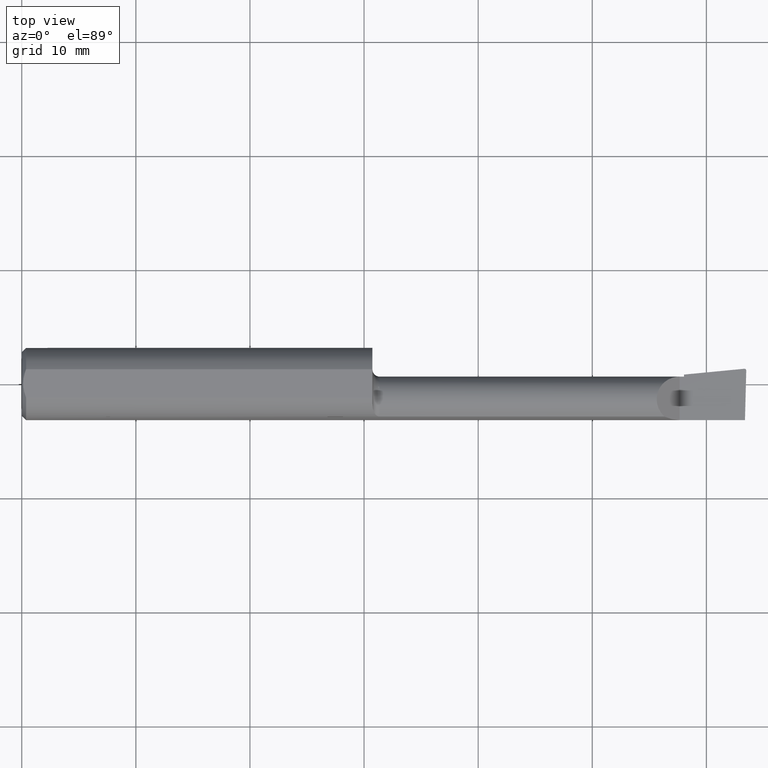
[diagram: clean part render]
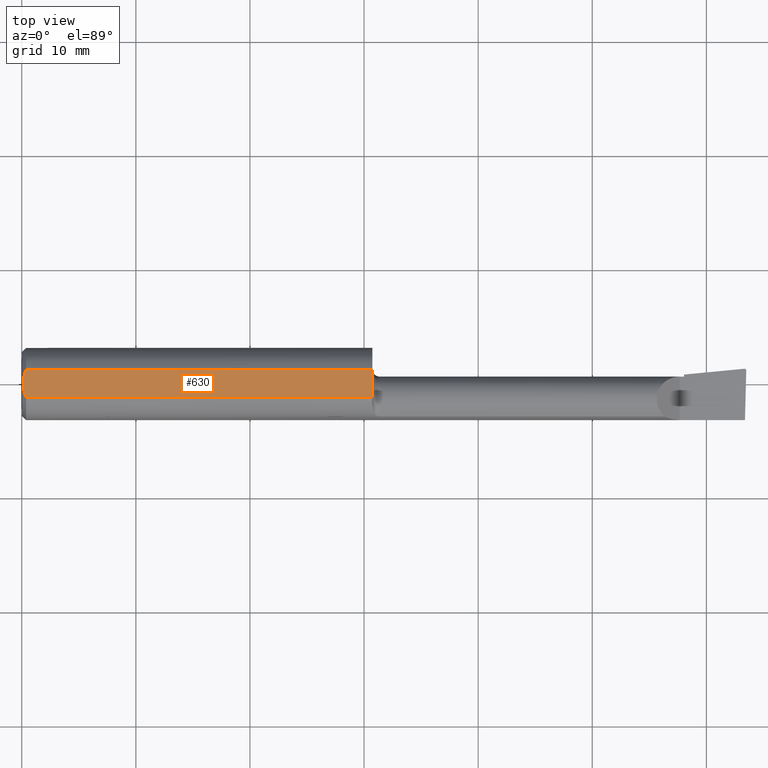
[diagram: same view with one face highlighted and labeled with its STEP entity id]
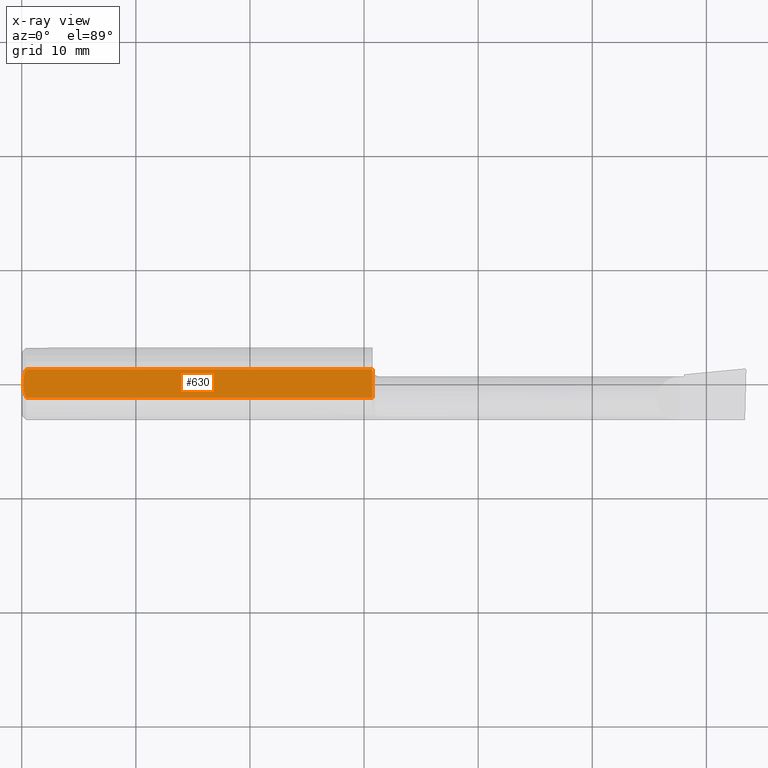
[diagram: x-ray of the same camera — body ghosted, the highlighted face saturated]
A machine part, top view. The second image highlights one B-rep face of the part: STEP entity #630.
The next image is the same camera in x-ray: the body ghosted, the highlighted face saturated — about 0% of this face is hidden behind the body in this view.
In plain terms, the highlighted planar face has unit normal (0, -0, -1).
Its self-contained STEP definition (entity closure, byte-faithful):
#17 = CARTESIAN_POINT ( 'NONE',  ( 2.500000000000000000, 0.1748500000000000054, 0.1148500000000000076 ) ) ;
#19 = CARTESIAN_POINT ( 'NONE',  ( 0.005000000000000237761, 1.454187638523587873E-17, 0.1148500000000000076 ) ) ;
#21 = CARTESIAN_POINT ( 'NONE',  ( 0.01499999999999999424, 0.04895916665957457392, 0.1148500000000000076 ) ) ;
#35 = CARTESIAN_POINT ( 'NONE',  ( 0.009410502401328815075, 0.03310661131402416191, 0.1148500000000000076 ) ) ;
#66 = DIRECTION ( 'NONE',  ( -1.000000000000000000, -0.0000000000000000000, -0.0000000000000000000 ) ) ;
#80 = B_SPLINE_CURVE_WITH_KNOTS ( 'NONE', 3,
 ( #665, #380, #325, #549, #288, #636 ),
 .UNSPECIFIED., .F., .F.,
 ( 4, 2, 4 ),
 ( 0.001029394377391489035, 0.001663875367397493060, 0.002298356357403497086 ),
 .UNSPECIFIED. ) ;
#99 = ORIENTED_EDGE ( 'NONE', *, *, #323, .F. ) ;
#120 = CARTESIAN_POINT ( 'NONE',  ( 1.210000000000000187, 0.1748500000000000054, 0.1148500000000000076 ) ) ;
#133 = B_SPLINE_CURVE_WITH_KNOTS ( 'NONE', 3,
 ( #19, #456, #374, #35, #424, #267 ),
 .UNSPECIFIED., .F., .F.,
 ( 4, 2, 4 ),
 ( 0.002298356357403497086, 0.002932796277434359007, 0.003567236197465221362 ),
 .UNSPECIFIED. ) ;
#134 = LINE ( 'NONE', #333, #540 ) ;
#150 = VECTOR ( 'NONE', #66, 39.37007874015748143 ) ;
#153 = CARTESIAN_POINT ( 'NONE',  ( 1.210000000000000187, 0.04895916665957456004, 0.1148500000000000076 ) ) ;
#174 = VERTEX_POINT ( 'NONE', #21 ) ;
#218 = EDGE_CURVE ( 'NONE', #293, #174, #133, .T. ) ;
#224 = CARTESIAN_POINT ( 'NONE',  ( 1.210000000000000187, -0.04895916665957457392, 0.1148500000000000215 ) ) ;
#240 = VERTEX_POINT ( 'NONE', #224 ) ;
#260 = FACE_OUTER_BOUND ( 'NONE', #379, .T. ) ;
#267 = CARTESIAN_POINT ( 'NONE',  ( 0.01499999999999999424, 0.04895916665957457392, 0.1148500000000000076 ) ) ;
#284 = EDGE_CURVE ( 'NONE', #569, #293, #80, .T. ) ;
#288 = CARTESIAN_POINT ( 'NONE',  ( 0.005000000000000194393, -0.008410771716546815852, 0.1148500000000000076 ) ) ;
#293 = VERTEX_POINT ( 'NONE', #637 ) ;
#318 = EDGE_CURVE ( 'NONE', #538, #240, #411, .T. ) ;
#323 = EDGE_CURVE ( 'NONE', #240, #569, #422, .T. ) ;
#325 = CARTESIAN_POINT ( 'NONE',  ( 0.009415874254822530556, -0.03313958207962815899, 0.1148500000000000354 ) ) ;
#333 = CARTESIAN_POINT ( 'NONE',  ( 0.0000000000000000000, 0.04895916665957457392, 0.1148500000000000076 ) ) ;
#364 = ORIENTED_EDGE ( 'NONE', *, *, #318, .F. ) ;
#374 = CARTESIAN_POINT ( 'NONE',  ( 0.005947935873631425563, 0.01679708999422678192, 0.1148499999999999938 ) ) ;
#379 = EDGE_LOOP ( 'NONE', ( #364, #571, #398, #385, #99 ) ) ;
#380 = CARTESIAN_POINT ( 'NONE',  ( 0.01195732443765553168, -0.04120008761723500251, 0.1148500000000000215 ) ) ;
#385 = ORIENTED_EDGE ( 'NONE', *, *, #284, .F. ) ;
#398 = ORIENTED_EDGE ( 'NONE', *, *, #218, .F. ) ;
#401 = EDGE_CURVE ( 'NONE', #174, #538, #134, .T. ) ;
#411 = LINE ( 'NONE', #120, #541 ) ;
#422 = LINE ( 'NONE', #645, #150 ) ;
#424 = CARTESIAN_POINT ( 'NONE',  ( 0.01193974418109659645, 0.04115525648180389656, 0.1148500000000000076 ) ) ;
#445 = DIRECTION ( 'NONE',  ( 0.0000000000000000000, 1.000000000000000000, -4.882484975808304553E-17 ) ) ;
#456 = CARTESIAN_POINT ( 'NONE',  ( 0.005000000000000195260, 0.008410227287019747533, 0.1148500000000000215 ) ) ;
#487 = PLANE ( 'NONE',  #573 ) ;
#489 = DIRECTION ( 'NONE',  ( 1.000000000000000000, 0.0000000000000000000, 0.0000000000000000000 ) ) ;
#538 = VERTEX_POINT ( 'NONE', #153 ) ;
#540 = VECTOR ( 'NONE', #489, 39.37007874015748143 ) ;
#541 = VECTOR ( 'NONE', #552, 39.37007874015748143 ) ;
#549 = CARTESIAN_POINT ( 'NONE',  ( 0.005932194444709924276, -0.01671525318617307979, 0.1148500000000000215 ) ) ;
#552 = DIRECTION ( 'NONE',  ( -3.414809992080329023E-18, -1.000000000000000000, 4.882484975808304553E-17 ) ) ;
#569 = VERTEX_POINT ( 'NONE', #634 ) ;
#571 = ORIENTED_EDGE ( 'NONE', *, *, #401, .F. ) ;
#573 = AXIS2_PLACEMENT_3D ( 'NONE', #17, #588, #445 ) ;
#588 = DIRECTION ( 'NONE',  ( 0.0000000000000000000, -4.882484975808304553E-17, -1.000000000000000000 ) ) ;
#630 = ADVANCED_FACE ( 'NONE', ( #260 ), #487, .F. ) ;
#634 = CARTESIAN_POINT ( 'NONE',  ( 0.01499999999999999077, -0.04895916665957456004, 0.1148500000000000215 ) ) ;
#636 = CARTESIAN_POINT ( 'NONE',  ( 0.005000000000000237761, 1.454187638523587873E-17, 0.1148500000000000076 ) ) ;
#637 = CARTESIAN_POINT ( 'NONE',  ( 0.005000000000000237761, 1.454187638523587873E-17, 0.1148500000000000076 ) ) ;
#645 = CARTESIAN_POINT ( 'NONE',  ( 0.0000000000000000000, -0.04895916665957456004, 0.1148500000000000076 ) ) ;
#665 = CARTESIAN_POINT ( 'NONE',  ( 0.01499999999999999077, -0.04895916665957456004, 0.1148500000000000215 ) ) ;